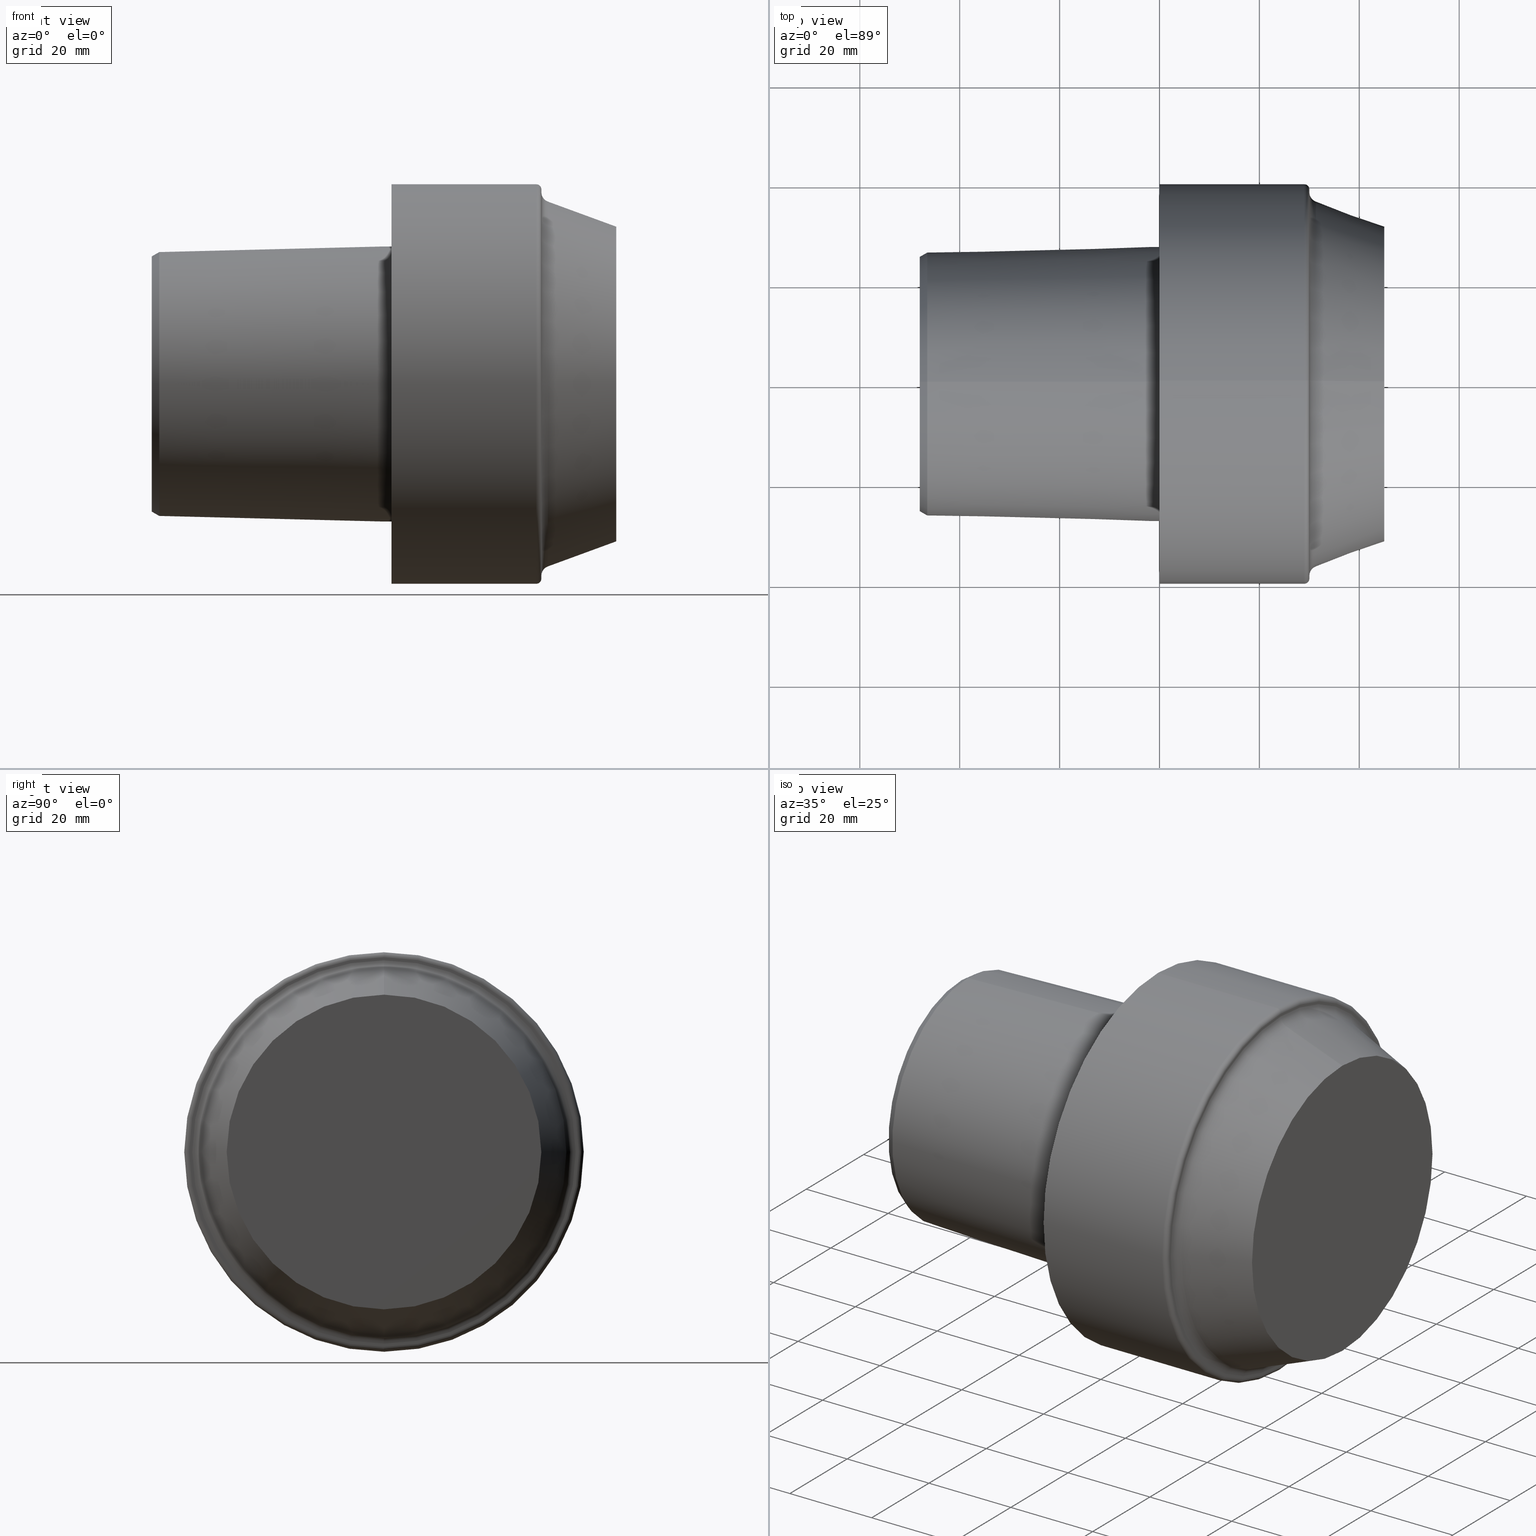
[diagram: canonical four-view strip — front | top / right | iso, engineering-drawing reading convention]
A machine part, canonical four-view strip (front | top / right | iso — engineering-drawing reading convention). The complete STEP part file that produces these views, byte-faithful:
ISO-10303-21;
HEADER;
FILE_DESCRIPTION (( 'STEP AP203' ),
    '1' );
FILE_NAME ('C8-F63-45.stp',
    '2022-03-11T15:35:07',
    ( '' ),
    ( '' ),
    'SwSTEP 2.0',
    'SolidWorks 2021',
    '' );
FILE_SCHEMA (( 'CONFIG_CONTROL_DESIGN' ));
ENDSEC;

DATA;
#1 = AXIS2_PLACEMENT_3D ( 'NONE', #528, #363, #141 ) ;
#2 = VERTEX_POINT ( 'NONE', #322 ) ;
#3 = EDGE_CURVE ( 'NONE', #401, #497, #310, .T. ) ;
#4 = VECTOR ( 'NONE', #342, 1000.000000000000000 ) ;
#5 = PERSON_AND_ORGANIZATION ( #154, #35 ) ;
#6 = DIRECTION ( 'NONE',  ( -1.000000000000000000, 0.000000000000000000, 0.000000000000000000 ) ) ;
#7 = CC_DESIGN_SECURITY_CLASSIFICATION ( #413, ( #44 ) ) ;
#8 = VERTEX_POINT ( 'NONE', #199 ) ;
#9 = AXIS2_PLACEMENT_3D ( 'NONE', #52, #56, #182 ) ;
#10 = EDGE_CURVE ( 'NONE', #229, #361, #404, .T. ) ;
#11 = EDGE_CURVE ( 'NONE', #382, #297, #85, .T. ) ;
#12 = CONICAL_SURFACE ( 'NONE', #242, 26.41260027772084129, 0.5235987755982992597 ) ;
#13 = VERTEX_POINT ( 'NONE', #325 ) ;
#14 = DIRECTION ( 'NONE',  ( 0.000000000000000000, 1.000000000000000000, 1.224646799147353947E-16 ) ) ;
#15 = EDGE_LOOP ( 'NONE', ( #465, #521, #59, #193 ) ) ;
#16 = ORIENTED_EDGE ( 'NONE', *, *, #294, .F. ) ;
#17 = DIRECTION ( 'NONE',  ( 0.000000000000000000, 0.000000000000000000, 1.000000000000000000 ) ) ;
#18 = DIRECTION ( 'NONE',  ( -1.000000000000000000, 0.000000000000000000, 0.000000000000000000 ) ) ;
#19 = ORIENTED_EDGE ( 'NONE', *, *, #125, .F. ) ;
#20 = PLANE ( 'NONE',  #282 ) ;
#21 = ORIENTED_EDGE ( 'NONE', *, *, #185, .T. ) ;
#22 = LOCAL_TIME ( 9, 35, 7.000000000000000000, #75 ) ;
#23 = DIRECTION ( 'NONE',  ( 0.000000000000000000, 0.000000000000000000, -1.000000000000000000 ) ) ;
#24 = VERTEX_POINT ( 'NONE', #461 ) ;
#25 = EDGE_CURVE ( 'NONE', #297, #8, #231, .T. ) ;
#26 = AXIS2_PLACEMENT_3D ( 'NONE', #293, #508, #378 ) ;
#27 = FACE_BOUND ( 'NONE', #50, .T. ) ;
#28 = ORIENTED_EDGE ( 'NONE', *, *, #448, .F. ) ;
#29 = DIRECTION ( 'NONE',  ( -1.000000000000000000, 0.000000000000000000, 0.000000000000000000 ) ) ;
#30 = FACE_OUTER_BOUND ( 'NONE', #87, .T. ) ;
#31 = DIRECTION ( 'NONE',  ( 0.000000000000000000, -1.224646799147350495E-16, 1.000000000000000000 ) ) ;
#32 = CARTESIAN_POINT ( 'NONE',  ( -46.49999994987858543, 0.000000000000000000, 0.000000000000000000 ) ) ;
#33 = ORIENTED_EDGE ( 'NONE', *, *, #476, .F. ) ;
#34 = ADVANCED_FACE ( 'NONE', ( #375 ), #241, .T. ) ;
#35 = ORGANIZATION ( 'UNSPECIFIED', 'UNSPECIFIED', '' ) ;
#36 = CARTESIAN_POINT ( 'NONE',  ( 28.99999997311141797, 4.897668707065322260E-15, -39.99249996386929951 ) ) ;
#37 = CIRCLE ( 'NONE', #88, 39.99249996386929951 ) ;
#38 = AXIS2_PLACEMENT_3D ( 'NONE', #155, #111, #208 ) ;
#39 = CARTESIAN_POINT ( 'NONE',  ( 31.31149067075369885, 0.000000000000000000, 0.000000000000000000 ) ) ;
#40 = CARTESIAN_POINT ( 'NONE',  ( 44.99999905679140966, 0.000000000000000000, 0.000000000000000000 ) ) ;
#41 = APPROVAL_ROLE ( '' ) ;
#42 = CARTESIAN_POINT ( 'NONE',  ( 2.691416640612785863E-09, 0.000000000000000000, 39.99249996386929951 ) ) ;
#43 = PERSON_AND_ORGANIZATION ( #154, #35 ) ;
#44 = PRODUCT_DEFINITION_FORMATION_WITH_SPECIFIED_SOURCE ( 'ANY', '', #275, .NOT_KNOWN. ) ;
#45 = UNCERTAINTY_MEASURE_WITH_UNIT (LENGTH_MEASURE( 1.000000000000000082E-05 ), #402, 'distance_accuracy_value', 'NONE');
#46 = COORDINATED_UNIVERSAL_TIME_OFFSET ( 6, 0, .BEHIND. ) ;
#47 = EDGE_CURVE ( 'NONE', #8, #297, #175, .T. ) ;
#48 = CIRCLE ( 'NONE', #423, 38.39687234549688810 ) ;
#49 = TOROIDAL_SURFACE ( 'NONE', #26, 38.99249996488934045, 0.9999999989799999156 ) ;
#50 = EDGE_LOOP ( 'NONE', ( #433, #356 ) ) ;
#51 = ADVANCED_FACE ( 'NONE', ( #328 ), #244, .F. ) ;
#52 = CARTESIAN_POINT ( 'NONE',  ( 2.691419645645579073E-09, 39.99249996386929951, 0.000000000000000000 ) ) ;
#53 = EDGE_LOOP ( 'NONE', ( #366, #28 ) ) ;
#54 = CIRCLE ( 'NONE', #1, 31.49999997253168615 ) ;
#55 = DIRECTION ( 'NONE',  ( -1.000000000000000000, 0.000000000000000000, 0.000000000000000000 ) ) ;
#56 = DIRECTION ( 'NONE',  ( 1.000000000000000000, 0.000000000000000000, 0.000000000000000000 ) ) ;
#57 = CIRCLE ( 'NONE', #369, 39.99249996386929951 ) ;
#58 = CONICAL_SURFACE ( 'NONE', #333, 27.52650806658465399, 0.02499311489546479637 ) ;
#59 = ORIENTED_EDGE ( 'NONE', *, *, #10, .F. ) ;
#60 = FACE_OUTER_BOUND ( 'NONE', #302, .T. ) ;
#61 = CARTESIAN_POINT ( 'NONE',  ( 28.99999997311141797, 0.000000000000000000, 0.000000000000000000 ) ) ;
#62 = ORIENTED_EDGE ( 'NONE', *, *, #92, .T. ) ;
#63 = FACE_OUTER_BOUND ( 'NONE', #223, .T. ) ;
#64 = ORIENTED_EDGE ( 'NONE', *, *, #228, .F. ) ;
#65 = DIRECTION ( 'NONE',  ( 0.000000000000000000, 0.000000000000000000, -1.000000000000000000 ) ) ;
#66 = CC_DESIGN_DATE_AND_TIME_ASSIGNMENT ( #422, #162, ( #164 ) ) ;
#67 = EDGE_LOOP ( 'NONE', ( #501, #403, #253, #470 ) ) ;
#68 = EDGE_LOOP ( 'NONE', ( #19, #444 ) ) ;
#69 = CARTESIAN_POINT ( 'NONE',  ( -46.49999994987858543, 0.000000000000000000, 0.000000000000000000 ) ) ;
#70 = DIRECTION ( 'NONE',  ( 0.000000000000000000, 0.000000000000000000, 1.000000000000000000 ) ) ;
#71 = VECTOR ( 'NONE', #217, 1000.000000000000000 ) ;
#72 = CARTESIAN_POINT ( 'NONE',  ( -46.49999994987858543, 0.000000000000000000, 0.000000000000000000 ) ) ;
#73 = DIRECTION ( 'NONE',  ( 0.000000000000000000, 0.000000000000000000, -1.000000000000000000 ) ) ;
#74 = EDGE_CURVE ( 'NONE', #2, #382, #432, .T. ) ;
#75 = COORDINATED_UNIVERSAL_TIME_OFFSET ( 6, 0, .BEHIND. ) ;
#76 = DIRECTION ( 'NONE',  ( 0.000000000000000000, 0.000000000000000000, 1.000000000000000000 ) ) ;
#77 = CARTESIAN_POINT ( 'NONE',  ( -47.99999995507708661, 0.000000000000000000, 0.000000000000000000 ) ) ;
#78 = APPROVAL_DATE_TIME ( #368, #339 ) ;
#79 = CC_DESIGN_APPROVAL ( #339, ( #164 ) ) ;
#80 = CARTESIAN_POINT ( 'NONE',  ( 2.691416640612785863E-09, 0.000000000000000000, 0.000000000000000000 ) ) ;
#81 = DIRECTION ( 'NONE',  ( -1.000000000000000000, 0.000000000000000000, 0.000000000000000000 ) ) ;
#82 = CALENDAR_DATE ( 2022, 11, 3 ) ;
#83 = VECTOR ( 'NONE', #493, 1000.000000000000000 ) ;
#84 = AXIS2_PLACEMENT_3D ( 'NONE', #537, #108, #118 ) ;
#85 = LINE ( 'NONE', #232, #215 ) ;
#86 = EDGE_CURVE ( 'NONE', #24, #361, #491, .T. ) ;
#87 = EDGE_LOOP ( 'NONE', ( #33, #145, #308, #142 ) ) ;
#88 = AXIS2_PLACEMENT_3D ( 'NONE', #454, #157, #262 ) ;
#89 = ADVANCED_FACE ( 'NONE', ( #163 ), #146, .T. ) ;
#90 = VERTEX_POINT ( 'NONE', #42 ) ;
#91 = CONICAL_SURFACE ( 'NONE', #173, 26.41260027772084129, 0.5235987755982992597 ) ;
#92 = EDGE_CURVE ( 'NONE', #382, #2, #257, .T. ) ;
#93 = ORIENTED_EDGE ( 'NONE', *, *, #503, .F. ) ;
#94 = APPLICATION_CONTEXT ( 'configuration controlled 3d designs of mechanical parts and assemblies' ) ;
#95 = FACE_OUTER_BOUND ( 'NONE', #136, .T. ) ;
#96 = CC_DESIGN_DATE_AND_TIME_ASSIGNMENT ( #323, #539, ( #413 ) ) ;
#97 = ORIENTED_EDGE ( 'NONE', *, *, #396, .T. ) ;
#98 = LOCAL_TIME ( 9, 35, 7.000000000000000000, #46 ) ;
#99 = CARTESIAN_POINT ( 'NONE',  ( 31.99999997005141594, 4.702260681659803466E-15, -38.39687234665290561 ) ) ;
#100 = CONICAL_SURFACE ( 'NONE', #292, 31.49999997253168615, 0.3514447942182064577 ) ;
#101 = AXIS2_PLACEMENT_3D ( 'NONE', #494, #412, #409 ) ;
#102 = ORIENTED_EDGE ( 'NONE', *, *, #25, .F. ) ;
#103 = LINE ( 'NONE', #264, #135 ) ;
#104 = EDGE_CURVE ( 'NONE', #336, #364, #386, .T. ) ;
#105 = DIRECTION ( 'NONE',  ( -1.000000000000000000, 0.000000000000000000, 0.000000000000000000 ) ) ;
#106 = DIRECTION ( 'NONE',  ( 0.000000000000000000, 1.000000000000000000, 0.000000000000000000 ) ) ;
#107 = CARTESIAN_POINT ( 'NONE',  ( -47.99999995507708661, 0.000000000000000000, 27.52650806658465399 ) ) ;
#108 = DIRECTION ( 'NONE',  ( -1.000000000000000000, 0.000000000000000000, 0.000000000000000000 ) ) ;
#109 = CARTESIAN_POINT ( 'NONE',  ( 31.31149067075369885, 4.472302306960778562E-15, -36.51911971741218821 ) ) ;
#110 = ADVANCED_FACE ( 'NONE', ( #449 ), #315, .T. ) ;
#111 = DIRECTION ( 'NONE',  ( -1.000000000000000000, 0.000000000000000000, 0.000000000000000000 ) ) ;
#112 = CIRCLE ( 'NONE', #340, 36.51911971741218821 ) ;
#113 = CARTESIAN_POINT ( 'NONE',  ( 29.99999997209141611, 0.000000000000000000, 0.000000000000000000 ) ) ;
#114 = DIRECTION ( 'NONE',  ( 0.000000000000000000, -1.000000000000000000, 0.000000000000000000 ) ) ;
#115 = CARTESIAN_POINT ( 'NONE',  ( -1.940694415329066391, 0.000000000000000000, 0.000000000000000000 ) ) ;
#116 = COORDINATED_UNIVERSAL_TIME_OFFSET ( 6, 0, .BEHIND. ) ;
#117 = DIRECTION ( 'NONE',  ( 1.000000000000000000, 0.000000000000000000, 0.000000000000000000 ) ) ;
#118 = DIRECTION ( 'NONE',  ( 0.000000000000000000, 0.000000000000000000, 1.000000000000000000 ) ) ;
#119 = MECHANICAL_CONTEXT ( 'NONE', #459, 'mechanical' ) ;
#120 = AXIS2_PLACEMENT_3D ( 'NONE', #99, #255, #31 ) ;
#121 = DIRECTION ( 'NONE',  ( -1.000000000000000000, 0.000000000000000000, 0.000000000000000000 ) ) ;
#122 = APPROVAL_ROLE ( '' ) ;
#123 = AXIS2_PLACEMENT_3D ( 'NONE', #272, #452, #234 ) ;
#124 = AXIS2_PLACEMENT_3D ( 'NONE', #77, #406, #150 ) ;
#125 = EDGE_CURVE ( 'NONE', #523, #24, #341, .T. ) ;
#126 = EDGE_LOOP ( 'NONE', ( #140, #436, #529, #515 ) ) ;
#127 = CALENDAR_DATE ( 2022, 11, 3 ) ;
#128 = CARTESIAN_POINT ( 'NONE',  ( 44.99999905679140966, 0.000000000000000000, 0.000000000000000000 ) ) ;
#129 = CIRCLE ( 'NONE', #468, 38.99249996488934045 ) ;
#130 = ADVANCED_FACE ( 'NONE', ( #30 ), #285, .T. ) ;
#131 = AXIS2_PLACEMENT_3D ( 'NONE', #458, #161, #489 ) ;
#132 = CYLINDRICAL_SURFACE ( 'NONE', #309, 39.99249996386929951 ) ;
#133 = ADVANCED_FACE ( 'NONE', ( #531 ), #49, .T. ) ;
#134 = ORIENTED_EDGE ( 'NONE', *, *, #74, .T. ) ;
#135 = VECTOR ( 'NONE', #360, 1000.000000000000114 ) ;
#136 = EDGE_LOOP ( 'NONE', ( #304, #384 ) ) ;
#137 = CC_DESIGN_PERSON_AND_ORGANIZATION_ASSIGNMENT ( #327, #200, ( #44 ) ) ;
#138 = AXIS2_PLACEMENT_3D ( 'NONE', #362, #530, #65 ) ;
#139 = DIRECTION ( 'NONE',  ( 0.000000000000000000, 0.000000000000000000, 1.000000000000000000 ) ) ;
#140 = ORIENTED_EDGE ( 'NONE', *, *, #86, .F. ) ;
#141 = DIRECTION ( 'NONE',  ( 0.000000000000000000, 0.000000000000000000, 1.000000000000000000 ) ) ;
#142 = ORIENTED_EDGE ( 'NONE', *, *, #249, .F. ) ;
#143 = APPROVAL_PERSON_ORGANIZATION ( #335, #518, #492 ) ;
#144 = DIRECTION ( 'NONE',  ( 1.000000000000000000, 0.000000000000000000, 0.000000000000000000 ) ) ;
#145 = ORIENTED_EDGE ( 'NONE', *, *, #3, .T. ) ;
#146 = CONICAL_SURFACE ( 'NONE', #438, 27.52650806658465399, 0.02499311489546479637 ) ;
#147 = ORIENTED_EDGE ( 'NONE', *, *, #249, .T. ) ;
#148 = CARTESIAN_POINT ( 'NONE',  ( 29.99999997209141611, 0.000000000000000000, 0.000000000000000000 ) ) ;
#149 = DIRECTION ( 'NONE',  ( 0.000000000000000000, 0.000000000000000000, -1.000000000000000000 ) ) ;
#150 = DIRECTION ( 'NONE',  ( 0.000000000000000000, 0.000000000000000000, 1.000000000000000000 ) ) ;
#151 = CARTESIAN_POINT ( 'NONE',  ( 29.99999997209141611, 0.000000000000000000, 38.99249996488934045 ) ) ;
#152 = ADVANCED_FACE ( 'NONE', ( #203 ), #100, .T. ) ;
#153 = DIRECTION ( 'NONE',  ( -1.000000000000000000, 0.000000000000000000, 0.000000000000000000 ) ) ;
#154 = PERSON ( 'UNSPECIFIED', 'UNSPECIFIED', 'UNSPECIFIED', ('UNSPECIFIED'), ('UNSPECIFIED'), ('UNSPECIFIED') ) ;
#155 = CARTESIAN_POINT ( 'NONE',  ( 29.99999997209141611, 0.000000000000000000, 0.000000000000000000 ) ) ;
#156 = DIRECTION ( 'NONE',  ( 0.000000000000000000, -1.224646799147358384E-16, 1.000000000000000000 ) ) ;
#157 = DIRECTION ( 'NONE',  ( -1.000000000000000000, 0.000000000000000000, 0.000000000000000000 ) ) ;
#158 = DIRECTION ( 'NONE',  ( 0.000000000000000000, 0.000000000000000000, 1.000000000000000000 ) ) ;
#159 = VECTOR ( 'NONE', #370, 1000.000000000000114 ) ;
#160 = COORDINATED_UNIVERSAL_TIME_OFFSET ( 6, 0, .BEHIND. ) ;
#161 = DIRECTION ( 'NONE',  ( -1.000000000000000000, 0.000000000000000000, 0.000000000000000000 ) ) ;
#162 = DATE_TIME_ROLE ( 'creation_date' ) ;
#163 = FACE_OUTER_BOUND ( 'NONE', #480, .T. ) ;
#164 = PRODUCT_DEFINITION ( 'UNKNOWN', '', #44, #168 ) ;
#165 = APPROVAL_STATUS ( 'not_yet_approved' ) ;
#166 = AXIS2_PLACEMENT_3D ( 'NONE', #391, #525, #197 ) ;
#167 = PERSON_AND_ORGANIZATION ( #154, #35 ) ;
#168 = DESIGN_CONTEXT ( 'detailed design', #94, 'design' ) ;
#169 = CARTESIAN_POINT ( 'NONE',  ( 0.000000000000000000, 0.000000000000000000, 0.000000000000000000 ) ) ;
#170 = ADVANCED_FACE ( 'NONE', ( #295 ), #58, .T. ) ;
#171 = CARTESIAN_POINT ( 'NONE',  ( -1.940694415329066391, 0.000000000000000000, 0.000000000000000000 ) ) ;
#172 = ORIENTED_EDGE ( 'NONE', *, *, #3, .F. ) ;
#173 = AXIS2_PLACEMENT_3D ( 'NONE', #72, #117, #233 ) ;
#174 = AXIS2_PLACEMENT_3D ( 'NONE', #488, #191, #358 ) ;
#175 = CIRCLE ( 'NONE', #357, 26.41260027772084129 ) ;
#176 = CARTESIAN_POINT ( 'NONE',  ( 31.99999997005141594, 0.000000000000000000, 0.000000000000000000 ) ) ;
#177 = ORIENTED_EDGE ( 'NONE', *, *, #246, .F. ) ;
#178 = ADVANCED_FACE ( 'NONE', ( #427 ), #247, .F. ) ;
#179 = ORIENTED_EDGE ( 'NONE', *, *, #194, .F. ) ;
#180 = LINE ( 'NONE', #395, #4 ) ;
#181 = ORIENTED_EDGE ( 'NONE', *, *, #11, .T. ) ;
#182 = DIRECTION ( 'NONE',  ( 0.000000000000000000, 1.000000000000000000, 0.000000000000000000 ) ) ;
#183 = ORIENTED_EDGE ( 'NONE', *, *, #387, .F. ) ;
#184 = DIRECTION ( 'NONE',  ( 0.000000000000000000, 0.000000000000000000, 1.000000000000000000 ) ) ;
#185 = EDGE_CURVE ( 'NONE', #290, #385, #213, .T. ) ;
#186 = ORIENTED_EDGE ( 'NONE', *, *, #343, .T. ) ;
#187 = CARTESIAN_POINT ( 'NONE',  ( 28.99999997311141797, 0.000000000000000000, 39.99249996386929951 ) ) ;
#188 = EDGE_LOOP ( 'NONE', ( #218, #181, #512, #519 ) ) ;
#189 = AXIS2_PLACEMENT_3D ( 'NONE', #169, #496, #421 ) ;
#190 = DIRECTION ( 'NONE',  ( -1.000000000000000000, 0.000000000000000000, 0.000000000000000000 ) ) ;
#191 = DIRECTION ( 'NONE',  ( -1.000000000000000000, 0.000000000000000000, 0.000000000000000000 ) ) ;
#192 = AXIS2_PLACEMENT_3D ( 'NONE', #40, #532, #417 ) ;
#193 = ORIENTED_EDGE ( 'NONE', *, *, #536, .F. ) ;
#194 = EDGE_CURVE ( 'NONE', #347, #353, #180, .T. ) ;
#195 = CARTESIAN_POINT ( 'NONE',  ( -47.99999995507708661, 25.54657487093501445, 0.000000000000000000 ) ) ;
#196 = DIRECTION ( 'NONE',  ( -0.9388763158127126918, 4.215903544302657571E-17, -0.3442546493599574209 ) ) ;
#197 = DIRECTION ( 'NONE',  ( 0.000000000000000000, 0.000000000000000000, 1.000000000000000000 ) ) ;
#198 = FACE_OUTER_BOUND ( 'NONE', #291, .T. ) ;
#199 = CARTESIAN_POINT ( 'NONE',  ( -46.49999994987858543, 0.000000000000000000, -26.41260027772084129 ) ) ;
#200 = PERSON_AND_ORGANIZATION_ROLE ( 'design_supplier' ) ;
#201 =( GEOMETRIC_REPRESENTATION_CONTEXT ( 3 ) GLOBAL_UNCERTAINTY_ASSIGNED_CONTEXT ( ( #45 ) ) GLOBAL_UNIT_ASSIGNED_CONTEXT ( ( #402, #270, #278 ) ) REPRESENTATION_CONTEXT ( 'NONE', 'WORKASPACE' ) );
#202 = CARTESIAN_POINT ( 'NONE',  ( 2.691416640612785863E-09, 0.000000000000000000, 27.52650806658465399 ) ) ;
#203 = FACE_OUTER_BOUND ( 'NONE', #15, .T. ) ;
#204 = PERSON_AND_ORGANIZATION_ROLE ( 'creator' ) ;
#205 = CARTESIAN_POINT ( 'NONE',  ( -1.940694415329066391, 0.000000000000000000, -27.52650806658465399 ) ) ;
#206 = CARTESIAN_POINT ( 'NONE',  ( -47.99999995507708661, 0.000000000000000000, 0.000000000000000000 ) ) ;
#207 = APPROVAL_DATE_TIME ( #453, #316 ) ;
#208 = DIRECTION ( 'NONE',  ( 0.000000000000000000, 0.000000000000000000, 1.000000000000000000 ) ) ;
#209 = CC_DESIGN_APPROVAL ( #518, ( #413 ) ) ;
#210 = PERSON_AND_ORGANIZATION ( #154, #35 ) ;
#211 = EDGE_CURVE ( 'NONE', #504, #290, #57, .T. ) ;
#212 = TOROIDAL_SURFACE ( 'NONE', #166, 38.39687234665290561, 1.999999997959999831 ) ;
#213 = LINE ( 'NONE', #288, #71 ) ;
#214 = CIRCLE ( 'NONE', #138, 1.999999997960001608 ) ;
#215 = VECTOR ( 'NONE', #268, 1000.000000000000000 ) ;
#216 = ADVANCED_FACE ( 'NONE', ( #306 ), #132, .T. ) ;
#217 = DIRECTION ( 'NONE',  ( -1.000000000000000000, 0.000000000000000000, 0.000000000000000000 ) ) ;
#218 = ORIENTED_EDGE ( 'NONE', *, *, #92, .F. ) ;
#219 = EDGE_LOOP ( 'NONE', ( #134, #62 ) ) ;
#220 = ADVANCED_FACE ( 'NONE', ( #298, #95 ), #479, .F. ) ;
#221 = ORIENTED_EDGE ( 'NONE', *, *, #440, .F. ) ;
#222 = CIRCLE ( 'NONE', #534, 27.52650806658465399 ) ;
#223 = EDGE_LOOP ( 'NONE', ( #93, #172 ) ) ;
#224 = FACE_OUTER_BOUND ( 'NONE', #126, .T. ) ;
#225 = DIRECTION ( 'NONE',  ( 0.000000000000000000, 0.000000000000000000, 1.000000000000000000 ) ) ;
#226 = ORIENTED_EDGE ( 'NONE', *, *, #448, .T. ) ;
#227 = LINE ( 'NONE', #411, #437 ) ;
#228 = EDGE_CURVE ( 'NONE', #504, #90, #258, .T. ) ;
#229 = VERTEX_POINT ( 'NONE', #303 ) ;
#230 = CARTESIAN_POINT ( 'NONE',  ( 29.99999997209141611, 4.702260681589007932E-15, -38.39687234607490751 ) ) ;
#231 = CIRCLE ( 'NONE', #131, 26.41260027772084129 ) ;
#232 = CARTESIAN_POINT ( 'NONE',  ( -46.49999994987858543, 3.234610638726928974E-15, 26.41260027772084129 ) ) ;
#233 = DIRECTION ( 'NONE',  ( 0.000000000000000000, 0.000000000000000000, -1.000000000000000000 ) ) ;
#234 = DIRECTION ( 'NONE',  ( 0.000000000000000000, 0.000000000000000000, 1.000000000000000000 ) ) ;
#235 = EDGE_LOOP ( 'NONE', ( #183, #475, #445, #472 ) ) ;
#236 = DIRECTION ( 'NONE',  ( 0.000000000000000000, 0.000000000000000000, 1.000000000000000000 ) ) ;
#237 = CARTESIAN_POINT ( 'NONE',  ( -47.99999995507708661, 0.000000000000000000, 0.000000000000000000 ) ) ;
#238 = LOCAL_TIME ( 9, 35, 7.000000000000000000, #116 ) ;
#239 = CC_DESIGN_PERSON_AND_ORGANIZATION_ASSIGNMENT ( #167, #243, ( #164 ) ) ;
#240 = CARTESIAN_POINT ( 'NONE',  ( 29.99999997209141611, 0.000000000000000000, 38.39687234607490751 ) ) ;
#241 = CYLINDRICAL_SURFACE ( 'NONE', #334, 27.52650806658465399 ) ;
#242 = AXIS2_PLACEMENT_3D ( 'NONE', #69, #324, #149 ) ;
#243 = PERSON_AND_ORGANIZATION_ROLE ( 'creator' ) ;
#244 = PLANE ( 'NONE',  #192 ) ;
#245 = APPROVAL_STATUS ( 'not_yet_approved' ) ;
#246 = EDGE_CURVE ( 'NONE', #13, #353, #222, .T. ) ;
#247 = TOROIDAL_SURFACE ( 'NONE', #524, 38.39687234665290561, 1.999999997959999831 ) ;
#248 = DIRECTION ( 'NONE',  ( 0.000000000000000000, 0.000000000000000000, 1.000000000000000000 ) ) ;
#249 = EDGE_CURVE ( 'NONE', #290, #504, #37, .T. ) ;
#250 = AXIS2_PLACEMENT_3D ( 'NONE', #280, #276, #372 ) ;
#251 = CC_DESIGN_PERSON_AND_ORGANIZATION_ASSIGNMENT ( #210, #204, ( #44 ) ) ;
#252 = ORIENTED_EDGE ( 'NONE', *, *, #460, .F. ) ;
#253 = ORIENTED_EDGE ( 'NONE', *, *, #301, .T. ) ;
#254 = ORIENTED_EDGE ( 'NONE', *, *, #476, .T. ) ;
#255 = DIRECTION ( 'NONE',  ( 0.000000000000000000, 1.000000000000000000, 1.224646799147351975E-16 ) ) ;
#256 = AXIS2_PLACEMENT_3D ( 'NONE', #415, #114, #23 ) ;
#257 = CIRCLE ( 'NONE', #124, 25.54657487093501445 ) ;
#258 = LINE ( 'NONE', #467, #429 ) ;
#259 = EDGE_LOOP ( 'NONE', ( #350, #263, #177, #462 ) ) ;
#260 = DIRECTION ( 'NONE',  ( -1.000000000000000000, 0.000000000000000000, 0.000000000000000000 ) ) ;
#261 = ORIENTED_EDGE ( 'NONE', *, *, #74, .F. ) ;
#262 = DIRECTION ( 'NONE',  ( 0.000000000000000000, 0.000000000000000000, 1.000000000000000000 ) ) ;
#263 = ORIENTED_EDGE ( 'NONE', *, *, #194, .T. ) ;
#264 = CARTESIAN_POINT ( 'NONE',  ( 44.99999905679140966, 0.000000000000000000, 31.49999997253168615 ) ) ;
#265 = ORIENTED_EDGE ( 'NONE', *, *, #211, .T. ) ;
#266 = CARTESIAN_POINT ( 'NONE',  ( 29.99999997209141611, 4.836436367170416693E-15, -38.99249996488934045 ) ) ;
#267 = EDGE_CURVE ( 'NONE', #2, #8, #227, .T. ) ;
#268 = DIRECTION ( 'NONE',  ( 0.8660254037844387076, 6.123233995736768501E-17, 0.4999999999999998890 ) ) ;
#269 = CIRCLE ( 'NONE', #120, 1.999999997960001608 ) ;
#270 =( NAMED_UNIT ( * ) PLANE_ANGLE_UNIT ( ) SI_UNIT ( $, .RADIAN. ) );
#271 = DIRECTION ( 'NONE',  ( 0.9996876883616916398, 0.000000000000000000, -0.02499051296106793996 ) ) ;
#272 = CARTESIAN_POINT ( 'NONE',  ( 28.99999997311141797, 0.000000000000000000, 0.000000000000000000 ) ) ;
#273 = COORDINATED_UNIVERSAL_TIME_OFFSET ( 6, 0, .BEHIND. ) ;
#274 = LINE ( 'NONE', #314, #159 ) ;
#275 = PRODUCT ( 'C8-F63-45', 'C8-F63-45', '', ( #119 ) ) ;
#276 = DIRECTION ( 'NONE',  ( -1.000000000000000000, 0.000000000000000000, 0.000000000000000000 ) ) ;
#277 = ADVANCED_FACE ( 'NONE', ( #198 ), #522, .T. ) ;
#278 =( NAMED_UNIT ( * ) SI_UNIT ( $, .STERADIAN. ) SOLID_ANGLE_UNIT ( ) );
#279 = CARTESIAN_POINT ( 'NONE',  ( -46.49999994987858543, 3.302817819135798828E-15, 26.41260027772084129 ) ) ;
#280 = CARTESIAN_POINT ( 'NONE',  ( 29.99999997209141611, 0.000000000000000000, 0.000000000000000000 ) ) ;
#281 = APPLICATION_PROTOCOL_DEFINITION ( 'international standard', 'config_control_design', 1994, #94 ) ;
#282 = AXIS2_PLACEMENT_3D ( 'NONE', #348, #260, #397 ) ;
#283 = DIRECTION ( 'NONE',  ( 1.000000000000000000, 0.000000000000000000, 0.000000000000000000 ) ) ;
#284 = CIRCLE ( 'NONE', #514, 39.99249996386929951 ) ;
#285 = TOROIDAL_SURFACE ( 'NONE', #123, 38.99249996488934045, 0.9999999989799999156 ) ;
#286 = SHAPE_DEFINITION_REPRESENTATION ( #516, #431 ) ;
#287 = EDGE_CURVE ( 'NONE', #349, #347, #299, .T. ) ;
#288 = CARTESIAN_POINT ( 'NONE',  ( -47.99999995507708661, 4.897668707065322260E-15, -39.99249996386929951 ) ) ;
#289 = ORIENTED_EDGE ( 'NONE', *, *, #321, .F. ) ;
#290 = VERTEX_POINT ( 'NONE', #36 ) ;
#291 = EDGE_LOOP ( 'NONE', ( #265, #21, #289, #64 ) ) ;
#292 = AXIS2_PLACEMENT_3D ( 'NONE', #128, #6, #248 ) ;
#293 = CARTESIAN_POINT ( 'NONE',  ( 28.99999997311141797, 0.000000000000000000, 0.000000000000000000 ) ) ;
#294 = EDGE_CURVE ( 'NONE', #497, #504, #507, .T. ) ;
#295 = FACE_OUTER_BOUND ( 'NONE', #235, .T. ) ;
#296 = MANIFOLD_SOLID_BREP ( 'Scale1', #471 ) ;
#297 = VERTEX_POINT ( 'NONE', #279 ) ;
#298 = FACE_BOUND ( 'NONE', #53, .T. ) ;
#299 = CIRCLE ( 'NONE', #379, 27.52650806658465399 ) ;
#300 = ORIENTED_EDGE ( 'NONE', *, *, #383, .F. ) ;
#301 = EDGE_CURVE ( 'NONE', #336, #229, #214, .T. ) ;
#302 = EDGE_LOOP ( 'NONE', ( #221, #527, #186, #388 ) ) ;
#303 = CARTESIAN_POINT ( 'NONE',  ( 31.31149067075369885, 0.000000000000000000, 36.51911971741218821 ) ) ;
#304 = ORIENTED_EDGE ( 'NONE', *, *, #321, .T. ) ;
#305 = DIRECTION ( 'NONE',  ( -1.000000000000000000, 0.000000000000000000, 0.000000000000000000 ) ) ;
#306 = FACE_OUTER_BOUND ( 'NONE', #345, .T. ) ;
#307 = APPROVAL_PERSON_ORGANIZATION ( #376, #316, #41 ) ;
#308 = ORIENTED_EDGE ( 'NONE', *, *, #294, .T. ) ;
#309 = AXIS2_PLACEMENT_3D ( 'NONE', #392, #513, #139 ) ;
#310 = CIRCLE ( 'NONE', #250, 38.99249996488934045 ) ;
#311 = CARTESIAN_POINT ( 'NONE',  ( -47.99999995507708661, 0.000000000000000000, 0.000000000000000000 ) ) ;
#312 = ORIENTED_EDGE ( 'NONE', *, *, #354, .F. ) ;
#313 = CARTESIAN_POINT ( 'NONE',  ( 44.99999905679140966, 0.000000000000000000, 0.000000000000000000 ) ) ;
#314 = CARTESIAN_POINT ( 'NONE',  ( -1.940694415329066391, 3.371024999544667893E-15, 27.52650806658465399 ) ) ;
#315 = CYLINDRICAL_SURFACE ( 'NONE', #101, 27.52650806658465399 ) ;
#316 = APPROVAL ( #245, 'UNSPECIFIED' ) ;
#317 = CARTESIAN_POINT ( 'NONE',  ( 2.691416640612785863E-09, 3.371024999544667893E-15, -27.52650806658465399 ) ) ;
#318 = DIRECTION ( 'NONE',  ( -1.000000000000000000, 0.000000000000000000, 0.000000000000000000 ) ) ;
#319 = ORIENTED_EDGE ( 'NONE', *, *, #211, .F. ) ;
#320 = CARTESIAN_POINT ( 'NONE',  ( -47.99999995507708661, 3.181581876606904120E-15, 25.54657487093501445 ) ) ;
#321 = EDGE_CURVE ( 'NONE', #90, #385, #284, .T. ) ;
#322 = CARTESIAN_POINT ( 'NONE',  ( -47.99999995507708661, 0.000000000000000000, -25.54657487093501445 ) ) ;
#323 = DATE_AND_TIME ( #127, #447 ) ;
#324 = DIRECTION ( 'NONE',  ( 1.000000000000000000, 0.000000000000000000, 0.000000000000000000 ) ) ;
#325 = CARTESIAN_POINT ( 'NONE',  ( -1.940694415329066391, 0.000000000000000000, 27.52650806658465399 ) ) ;
#326 = CC_DESIGN_PERSON_AND_ORGANIZATION_ASSIGNMENT ( #43, #533, ( #413 ) ) ;
#327 = PERSON_AND_ORGANIZATION ( #154, #35 ) ;
#328 = FACE_OUTER_BOUND ( 'NONE', #68, .T. ) ;
#329 = DATE_AND_TIME ( #456, #238 ) ;
#330 = CC_DESIGN_APPROVAL ( #316, ( #44 ) ) ;
#331 = DIRECTION ( 'NONE',  ( -1.000000000000000000, 0.000000000000000000, 0.000000000000000000 ) ) ;
#332 = DIRECTION ( 'NONE',  ( 1.000000000000000000, 0.000000000000000000, 0.000000000000000000 ) ) ;
#333 = AXIS2_PLACEMENT_3D ( 'NONE', #171, #332, #500 ) ;
#334 = AXIS2_PLACEMENT_3D ( 'NONE', #237, #420, #538 ) ;
#335 = PERSON_AND_ORGANIZATION ( #154, #35 ) ;
#336 = VERTEX_POINT ( 'NONE', #240 ) ;
#337 = APPLICATION_PROTOCOL_DEFINITION ( 'international standard', 'config_control_design', 1994, #459 ) ;
#338 = CONICAL_SURFACE ( 'NONE', #435, 31.49999997253168615, 0.3514447942182064577 ) ;
#339 = APPROVAL ( #418, 'UNSPECIFIED' ) ;
#340 = AXIS2_PLACEMENT_3D ( 'NONE', #39, #153, #398 ) ;
#341 = CIRCLE ( 'NONE', #416, 31.49999997253168615 ) ;
#342 = DIRECTION ( 'NONE',  ( -1.000000000000000000, 0.000000000000000000, 0.000000000000000000 ) ) ;
#343 = EDGE_CURVE ( 'NONE', #361, #229, #112, .T. ) ;
#344 = AXIS2_PLACEMENT_3D ( 'NONE', #394, #14, #156 ) ;
#345 = EDGE_LOOP ( 'NONE', ( #393, #147, #425, #252 ) ) ;
#346 = DIRECTION ( 'NONE',  ( -1.000000000000000000, 0.000000000000000000, 0.000000000000000000 ) ) ;
#347 = VERTEX_POINT ( 'NONE', #317 ) ;
#348 = CARTESIAN_POINT ( 'NONE',  ( 29.99999997209141611, 38.39687234549688810, 0.000000000000000000 ) ) ;
#349 = VERTEX_POINT ( 'NONE', #202 ) ;
#350 = ORIENTED_EDGE ( 'NONE', *, *, #287, .T. ) ;
#351 = FACE_OUTER_BOUND ( 'NONE', #219, .T. ) ;
#352 = AXIS2_PLACEMENT_3D ( 'NONE', #408, #484, #439 ) ;
#353 = VERTEX_POINT ( 'NONE', #535 ) ;
#354 = EDGE_CURVE ( 'NONE', #353, #13, #424, .T. ) ;
#355 = DIRECTION ( 'NONE',  ( -1.000000000000000000, 0.000000000000000000, 0.000000000000000000 ) ) ;
#356 = ORIENTED_EDGE ( 'NONE', *, *, #440, .T. ) ;
#357 = AXIS2_PLACEMENT_3D ( 'NONE', #32, #81, #455 ) ;
#358 = DIRECTION ( 'NONE',  ( 0.000000000000000000, 0.000000000000000000, 1.000000000000000000 ) ) ;
#359 = ORIENTED_EDGE ( 'NONE', *, *, #246, .T. ) ;
#360 = DIRECTION ( 'NONE',  ( -0.9388763158127126918, 0.000000000000000000, 0.3442546493599574209 ) ) ;
#361 = VERTEX_POINT ( 'NONE', #109 ) ;
#362 = CARTESIAN_POINT ( 'NONE',  ( 31.99999997005141594, 0.000000000000000000, 38.39687234665290561 ) ) ;
#363 = DIRECTION ( 'NONE',  ( -1.000000000000000000, 0.000000000000000000, 0.000000000000000000 ) ) ;
#364 = VERTEX_POINT ( 'NONE', #230 ) ;
#365 = ADVANCED_FACE ( 'NONE', ( #526 ), #12, .T. ) ;
#366 = ORIENTED_EDGE ( 'NONE', *, *, #287, .F. ) ;
#367 = CIRCLE ( 'NONE', #399, 27.52650806658465399 ) ;
#368 = DATE_AND_TIME ( #502, #22 ) ;
#369 = AXIS2_PLACEMENT_3D ( 'NONE', #61, #18, #510 ) ;
#370 = DIRECTION ( 'NONE',  ( 0.9996876883616916398, 3.060455170682228743E-18, 0.02499051296106793996 ) ) ;
#371 = AXIS2_PLACEMENT_3D ( 'NONE', #206, #121, #158 ) ;
#372 = DIRECTION ( 'NONE',  ( 0.000000000000000000, 0.000000000000000000, 1.000000000000000000 ) ) ;
#373 = CARTESIAN_POINT ( 'NONE',  ( 44.99999905679140966, 3.857637413950260996E-15, -31.49999997253168615 ) ) ;
#374 = SECURITY_CLASSIFICATION_LEVEL ( 'unclassified' ) ;
#375 = FACE_OUTER_BOUND ( 'NONE', #466, .T. ) ;
#376 = PERSON_AND_ORGANIZATION ( #154, #35 ) ;
#377 = CIRCLE ( 'NONE', #344, 0.9999999989799973621 ) ;
#378 = DIRECTION ( 'NONE',  ( 0.000000000000000000, 0.000000000000000000, 1.000000000000000000 ) ) ;
#379 = AXIS2_PLACEMENT_3D ( 'NONE', #405, #29, #76 ) ;
#380 = ORIENTED_EDGE ( 'NONE', *, *, #387, .T. ) ;
#381 = APPROVAL_DATE_TIME ( #329, #518 ) ;
#382 = VERTEX_POINT ( 'NONE', #320 ) ;
#383 = EDGE_CURVE ( 'NONE', #8, #353, #490, .T. ) ;
#384 = ORIENTED_EDGE ( 'NONE', *, *, #460, .T. ) ;
#385 = VERTEX_POINT ( 'NONE', #446 ) ;
#386 = CIRCLE ( 'NONE', #38, 38.39687234549688810 ) ;
#387 = EDGE_CURVE ( 'NONE', #297, #13, #274, .T. ) ;
#388 = ORIENTED_EDGE ( 'NONE', *, *, #301, .F. ) ;
#389 = ORIENTED_EDGE ( 'NONE', *, *, #503, .T. ) ;
#390 = VECTOR ( 'NONE', #271, 1000.000000000000114 ) ;
#391 = CARTESIAN_POINT ( 'NONE',  ( 31.99999997005141594, 0.000000000000000000, 0.000000000000000000 ) ) ;
#392 = CARTESIAN_POINT ( 'NONE',  ( -47.99999995507708661, 0.000000000000000000, 0.000000000000000000 ) ) ;
#393 = ORIENTED_EDGE ( 'NONE', *, *, #185, .F. ) ;
#394 = CARTESIAN_POINT ( 'NONE',  ( 28.99999997311141797, 4.775204027275495348E-15, -38.99249996488934045 ) ) ;
#395 = CARTESIAN_POINT ( 'NONE',  ( -47.99999995507708661, 3.371024999544667893E-15, -27.52650806658465399 ) ) ;
#396 = EDGE_CURVE ( 'NONE', #349, #13, #486, .T. ) ;
#397 = DIRECTION ( 'NONE',  ( 0.000000000000000000, 0.000000000000000000, 1.000000000000000000 ) ) ;
#398 = DIRECTION ( 'NONE',  ( 0.000000000000000000, 0.000000000000000000, 1.000000000000000000 ) ) ;
#399 = AXIS2_PLACEMENT_3D ( 'NONE', #517, #355, #450 ) ;
#400 = PRODUCT_RELATED_PRODUCT_CATEGORY ( 'detail', '', ( #275 ) ) ;
#401 = VERTEX_POINT ( 'NONE', #266 ) ;
#402 =( LENGTH_UNIT ( ) NAMED_UNIT ( * ) SI_UNIT ( .MILLI., .METRE. ) );
#403 = ORIENTED_EDGE ( 'NONE', *, *, #104, .F. ) ;
#404 = CIRCLE ( 'NONE', #84, 36.51911971741218821 ) ;
#405 = CARTESIAN_POINT ( 'NONE',  ( 2.691416640612785863E-09, 0.000000000000000000, 0.000000000000000000 ) ) ;
#406 = DIRECTION ( 'NONE',  ( -1.000000000000000000, 0.000000000000000000, 0.000000000000000000 ) ) ;
#407 = ADVANCED_FACE ( 'NONE', ( #451 ), #91, .T. ) ;
#408 = CARTESIAN_POINT ( 'NONE',  ( 2.691416640612785863E-09, 0.000000000000000000, 0.000000000000000000 ) ) ;
#409 = DIRECTION ( 'NONE',  ( 0.000000000000000000, 0.000000000000000000, 1.000000000000000000 ) ) ;
#410 = CALENDAR_DATE ( 2022, 11, 3 ) ;
#411 = CARTESIAN_POINT ( 'NONE',  ( -46.49999994987858543, 0.000000000000000000, -26.41260027772084129 ) ) ;
#412 = DIRECTION ( 'NONE',  ( -1.000000000000000000, 0.000000000000000000, 0.000000000000000000 ) ) ;
#413 = SECURITY_CLASSIFICATION ( '', '', #374 ) ;
#414 = AXIS2_PLACEMENT_3D ( 'NONE', #311, #483, #236 ) ;
#415 = CARTESIAN_POINT ( 'NONE',  ( 28.99999997311141797, 0.000000000000000000, 38.99249996488934045 ) ) ;
#416 = AXIS2_PLACEMENT_3D ( 'NONE', #487, #318, #70 ) ;
#417 = DIRECTION ( 'NONE',  ( 0.000000000000000000, 0.000000000000000000, 1.000000000000000000 ) ) ;
#418 = APPROVAL_STATUS ( 'not_yet_approved' ) ;
#419 = EDGE_CURVE ( 'NONE', #364, #361, #269, .T. ) ;
#420 = DIRECTION ( 'NONE',  ( -1.000000000000000000, 0.000000000000000000, 0.000000000000000000 ) ) ;
#421 = DIRECTION ( 'NONE',  ( 1.000000000000000000, 0.000000000000000000, 0.000000000000000000 ) ) ;
#422 = DATE_AND_TIME ( #410, #478 ) ;
#423 = AXIS2_PLACEMENT_3D ( 'NONE', #148, #190, #184 ) ;
#424 = CIRCLE ( 'NONE', #174, 27.52650806658465399 ) ;
#425 = ORIENTED_EDGE ( 'NONE', *, *, #228, .T. ) ;
#426 = ADVANCED_FACE ( 'NONE', ( #27, #63 ), #20, .F. ) ;
#427 = FACE_OUTER_BOUND ( 'NONE', #67, .T. ) ;
#428 = AXIS2_PLACEMENT_3D ( 'NONE', #195, #144, #106 ) ;
#429 = VECTOR ( 'NONE', #346, 1000.000000000000000 ) ;
#430 = EDGE_LOOP ( 'NONE', ( #389, #254, #319, #16 ) ) ;
#431 = ADVANCED_BREP_SHAPE_REPRESENTATION ( 'C8-F63-45', ( #296, #189 ), #201 ) ;
#432 = CIRCLE ( 'NONE', #371, 25.54657487093501445 ) ;
#433 = ORIENTED_EDGE ( 'NONE', *, *, #104, .T. ) ;
#434 = ORIENTED_EDGE ( 'NONE', *, *, #47, .T. ) ;
#435 = AXIS2_PLACEMENT_3D ( 'NONE', #313, #305, #17 ) ;
#436 = ORIENTED_EDGE ( 'NONE', *, *, #485, .T. ) ;
#437 = VECTOR ( 'NONE', #457, 1000.000000000000000 ) ;
#438 = AXIS2_PLACEMENT_3D ( 'NONE', #115, #283, #73 ) ;
#439 = DIRECTION ( 'NONE',  ( 0.000000000000000000, 0.000000000000000000, 1.000000000000000000 ) ) ;
#440 = EDGE_CURVE ( 'NONE', #364, #336, #48, .T. ) ;
#441 = DIRECTION ( 'NONE',  ( -1.000000000000000000, 0.000000000000000000, 0.000000000000000000 ) ) ;
#442 = EDGE_LOOP ( 'NONE', ( #511, #261, #473, #434 ) ) ;
#443 = DIRECTION ( 'NONE',  ( 0.000000000000000000, 0.000000000000000000, 1.000000000000000000 ) ) ;
#444 = ORIENTED_EDGE ( 'NONE', *, *, #485, .F. ) ;
#445 = ORIENTED_EDGE ( 'NONE', *, *, #383, .T. ) ;
#446 = CARTESIAN_POINT ( 'NONE',  ( 2.691416640612785863E-09, 4.897668707065322260E-15, -39.99249996386929951 ) ) ;
#447 = LOCAL_TIME ( 9, 35, 7.000000000000000000, #160 ) ;
#448 = EDGE_CURVE ( 'NONE', #347, #349, #367, .T. ) ;
#449 = FACE_OUTER_BOUND ( 'NONE', #259, .T. ) ;
#450 = DIRECTION ( 'NONE',  ( 0.000000000000000000, 0.000000000000000000, 1.000000000000000000 ) ) ;
#451 = FACE_OUTER_BOUND ( 'NONE', #442, .T. ) ;
#452 = DIRECTION ( 'NONE',  ( -1.000000000000000000, 0.000000000000000000, 0.000000000000000000 ) ) ;
#453 = DATE_AND_TIME ( #82, #98 ) ;
#454 = CARTESIAN_POINT ( 'NONE',  ( 28.99999997311141797, 0.000000000000000000, 0.000000000000000000 ) ) ;
#455 = DIRECTION ( 'NONE',  ( 0.000000000000000000, 0.000000000000000000, 1.000000000000000000 ) ) ;
#456 = CALENDAR_DATE ( 2022, 11, 3 ) ;
#457 = DIRECTION ( 'NONE',  ( 0.8660254037844387076, 0.000000000000000000, -0.4999999999999998890 ) ) ;
#458 = CARTESIAN_POINT ( 'NONE',  ( -46.49999994987858543, 0.000000000000000000, 0.000000000000000000 ) ) ;
#459 = APPLICATION_CONTEXT ( 'configuration controlled 3d designs of mechanical parts and assemblies' ) ;
#460 = EDGE_CURVE ( 'NONE', #385, #90, #506, .T. ) ;
#461 = CARTESIAN_POINT ( 'NONE',  ( 44.99999905679140966, 4.164969860455517807E-15, -31.49999997253168615 ) ) ;
#462 = ORIENTED_EDGE ( 'NONE', *, *, #396, .F. ) ;
#463 = PERSON_AND_ORGANIZATION_ROLE ( 'design_owner' ) ;
#464 = CC_DESIGN_PERSON_AND_ORGANIZATION_ASSIGNMENT ( #505, #463, ( #275 ) ) ;
#465 = ORIENTED_EDGE ( 'NONE', *, *, #125, .T. ) ;
#466 = EDGE_LOOP ( 'NONE', ( #179, #226, #97, #312 ) ) ;
#467 = CARTESIAN_POINT ( 'NONE',  ( -47.99999995507708661, 0.000000000000000000, 39.99249996386929951 ) ) ;
#468 = AXIS2_PLACEMENT_3D ( 'NONE', #113, #55, #477 ) ;
#469 = ADVANCED_FACE ( 'NONE', ( #60 ), #212, .F. ) ;
#470 = ORIENTED_EDGE ( 'NONE', *, *, #10, .T. ) ;
#471 = CLOSED_SHELL ( 'NONE', ( #509, #407, #170, #34, #220, #216, #130, #426, #178, #495, #51, #152, #469, #133, #277, #110, #89, #365 ) ) ;
#472 = ORIENTED_EDGE ( 'NONE', *, *, #354, .T. ) ;
#473 = ORIENTED_EDGE ( 'NONE', *, *, #267, .T. ) ;
#474 = CARTESIAN_POINT ( 'NONE',  ( -1.940694415329066391, 0.000000000000000000, 0.000000000000000000 ) ) ;
#475 = ORIENTED_EDGE ( 'NONE', *, *, #47, .F. ) ;
#476 = EDGE_CURVE ( 'NONE', #401, #290, #377, .T. ) ;
#477 = DIRECTION ( 'NONE',  ( 0.000000000000000000, 0.000000000000000000, 1.000000000000000000 ) ) ;
#478 = LOCAL_TIME ( 9, 35, 7.000000000000000000, #273 ) ;
#479 = PLANE ( 'NONE',  #9 ) ;
#480 = EDGE_LOOP ( 'NONE', ( #102, #380, #359, #300 ) ) ;
#481 = VECTOR ( 'NONE', #196, 1000.000000000000114 ) ;
#482 = CARTESIAN_POINT ( 'NONE',  ( 44.99999905679140966, 0.000000000000000000, 31.49999997253168615 ) ) ;
#483 = DIRECTION ( 'NONE',  ( -1.000000000000000000, 0.000000000000000000, 0.000000000000000000 ) ) ;
#484 = DIRECTION ( 'NONE',  ( -1.000000000000000000, 0.000000000000000000, 0.000000000000000000 ) ) ;
#485 = EDGE_CURVE ( 'NONE', #24, #523, #54, .T. ) ;
#486 = LINE ( 'NONE', #107, #83 ) ;
#487 = CARTESIAN_POINT ( 'NONE',  ( 44.99999905679140966, 0.000000000000000000, 0.000000000000000000 ) ) ;
#488 = CARTESIAN_POINT ( 'NONE',  ( -1.940694415329066391, 0.000000000000000000, 0.000000000000000000 ) ) ;
#489 = DIRECTION ( 'NONE',  ( 0.000000000000000000, 0.000000000000000000, 1.000000000000000000 ) ) ;
#490 = LINE ( 'NONE', #205, #390 ) ;
#491 = LINE ( 'NONE', #373, #481 ) ;
#492 = APPROVAL_ROLE ( '' ) ;
#493 = DIRECTION ( 'NONE',  ( -1.000000000000000000, 0.000000000000000000, 0.000000000000000000 ) ) ;
#494 = CARTESIAN_POINT ( 'NONE',  ( -47.99999995507708661, 0.000000000000000000, 0.000000000000000000 ) ) ;
#495 = ADVANCED_FACE ( 'NONE', ( #224 ), #338, .T. ) ;
#496 = DIRECTION ( 'NONE',  ( 0.000000000000000000, 0.000000000000000000, 1.000000000000000000 ) ) ;
#497 = VERTEX_POINT ( 'NONE', #151 ) ;
#498 = APPROVAL_PERSON_ORGANIZATION ( #5, #339, #122 ) ;
#499 = DIRECTION ( 'NONE',  ( 0.000000000000000000, 0.000000000000000000, 1.000000000000000000 ) ) ;
#500 = DIRECTION ( 'NONE',  ( 0.000000000000000000, 0.000000000000000000, -1.000000000000000000 ) ) ;
#501 = ORIENTED_EDGE ( 'NONE', *, *, #419, .F. ) ;
#502 = CALENDAR_DATE ( 2022, 11, 3 ) ;
#503 = EDGE_CURVE ( 'NONE', #497, #401, #129, .T. ) ;
#504 = VERTEX_POINT ( 'NONE', #187 ) ;
#505 = PERSON_AND_ORGANIZATION ( #154, #35 ) ;
#506 = CIRCLE ( 'NONE', #352, 39.99249996386929951 ) ;
#507 = CIRCLE ( 'NONE', #256, 0.9999999989799973621 ) ;
#508 = DIRECTION ( 'NONE',  ( -1.000000000000000000, 0.000000000000000000, 0.000000000000000000 ) ) ;
#509 = ADVANCED_FACE ( 'NONE', ( #351 ), #520, .F. ) ;
#510 = DIRECTION ( 'NONE',  ( 0.000000000000000000, 0.000000000000000000, 1.000000000000000000 ) ) ;
#511 = ORIENTED_EDGE ( 'NONE', *, *, #11, .F. ) ;
#512 = ORIENTED_EDGE ( 'NONE', *, *, #25, .T. ) ;
#513 = DIRECTION ( 'NONE',  ( -1.000000000000000000, 0.000000000000000000, 0.000000000000000000 ) ) ;
#514 = AXIS2_PLACEMENT_3D ( 'NONE', #80, #105, #443 ) ;
#515 = ORIENTED_EDGE ( 'NONE', *, *, #343, .F. ) ;
#516 = PRODUCT_DEFINITION_SHAPE ( 'NONE', 'NONE',  #164 ) ;
#517 = CARTESIAN_POINT ( 'NONE',  ( 2.691416640612785863E-09, 0.000000000000000000, 0.000000000000000000 ) ) ;
#518 = APPROVAL ( #165, 'UNSPECIFIED' ) ;
#519 = ORIENTED_EDGE ( 'NONE', *, *, #267, .F. ) ;
#520 = PLANE ( 'NONE',  #428 ) ;
#521 = ORIENTED_EDGE ( 'NONE', *, *, #86, .T. ) ;
#522 = CYLINDRICAL_SURFACE ( 'NONE', #414, 39.99249996386929951 ) ;
#523 = VERTEX_POINT ( 'NONE', #482 ) ;
#524 = AXIS2_PLACEMENT_3D ( 'NONE', #176, #331, #499 ) ;
#525 = DIRECTION ( 'NONE',  ( -1.000000000000000000, 0.000000000000000000, 0.000000000000000000 ) ) ;
#526 = FACE_OUTER_BOUND ( 'NONE', #188, .T. ) ;
#527 = ORIENTED_EDGE ( 'NONE', *, *, #419, .T. ) ;
#528 = CARTESIAN_POINT ( 'NONE',  ( 44.99999905679140966, 0.000000000000000000, 0.000000000000000000 ) ) ;
#529 = ORIENTED_EDGE ( 'NONE', *, *, #536, .T. ) ;
#530 = DIRECTION ( 'NONE',  ( 0.000000000000000000, -1.000000000000000000, 0.000000000000000000 ) ) ;
#531 = FACE_OUTER_BOUND ( 'NONE', #430, .T. ) ;
#532 = DIRECTION ( 'NONE',  ( -1.000000000000000000, 0.000000000000000000, 0.000000000000000000 ) ) ;
#533 = PERSON_AND_ORGANIZATION_ROLE ( 'classification_officer' ) ;
#534 = AXIS2_PLACEMENT_3D ( 'NONE', #474, #441, #225 ) ;
#535 = CARTESIAN_POINT ( 'NONE',  ( -1.940694415329066391, 3.371024999544667893E-15, -27.52650806658465399 ) ) ;
#536 = EDGE_CURVE ( 'NONE', #523, #229, #103, .T. ) ;
#537 = CARTESIAN_POINT ( 'NONE',  ( 31.31149067075369885, 0.000000000000000000, 0.000000000000000000 ) ) ;
#538 = DIRECTION ( 'NONE',  ( 0.000000000000000000, 0.000000000000000000, 1.000000000000000000 ) ) ;
#539 = DATE_TIME_ROLE ( 'classification_date' ) ;
ENDSEC;
END-ISO-10303-21;
